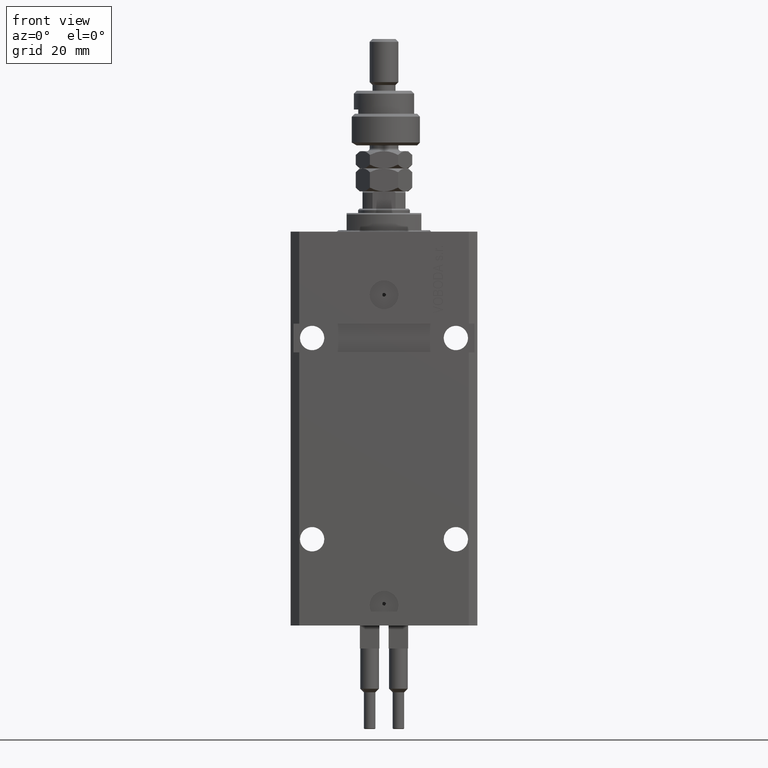
[diagram: clean part render]
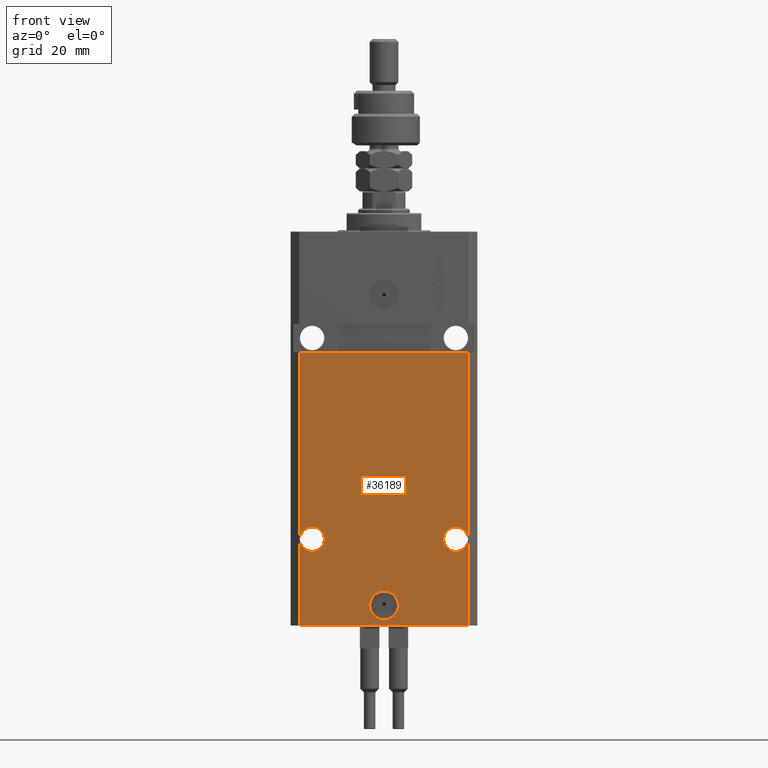
[diagram: same view with one face highlighted and labeled with its STEP entity id]
A machine part, front view. The second image highlights one B-rep face of the part: STEP entity #36189.
In plain terms, the highlighted planar face has unit normal (0, -1, 0).
Its self-contained STEP definition (entity closure, byte-faithful):
#200 = EDGE_CURVE ( 'NONE', #17312, #46493, #37804, .T. ) ;
#1455 = ORIENTED_EDGE ( 'NONE', *, *, #21288, .F. ) ;
#2128 = AXIS2_PLACEMENT_3D ( 'NONE', #20620, #36475, #15444 ) ;
#2803 = EDGE_LOOP ( 'NONE', ( #12438, #49709, #49940, #13972 ) ) ;
#3461 = FACE_BOUND ( 'NONE', #25334, .T. ) ;
#3558 = CARTESIAN_POINT ( 'NONE',  ( -29.49999999999650413, -22.49999999999949907, -41.99999999999999289 ) ) ;
#3888 = LINE ( 'NONE', #34297, #10810 ) ;
#3977 = PLANE ( 'NONE',  #33194 ) ;
#3979 = EDGE_CURVE ( 'NONE', #48999, #43509, #10589, .T. ) ;
#4627 = CARTESIAN_POINT ( 'NONE',  ( 29.49999999999650413, -22.49999999999949196, -137.0000000000000000 ) ) ;
#5873 = DIRECTION ( 'NONE',  ( 0.000000000000000000, 0.000000000000000000, 1.000000000000000000 ) ) ;
#6426 = AXIS2_PLACEMENT_3D ( 'NONE', #12921, #13447, #40470 ) ;
#7291 = EDGE_CURVE ( 'NONE', #50303, #34381, #29817, .T. ) ;
#8337 = CIRCLE ( 'NONE', #44880, 4.249999999989050536 ) ;
#8793 = CARTESIAN_POINT ( 'NONE',  ( -32.49999999999650413, -22.49999999999949907, -41.99999999999999289 ) ) ;
#9608 = CARTESIAN_POINT ( 'NONE',  ( -29.49999999999650413, -22.49999999999949907, -137.0000000000000000 ) ) ;
#10275 = EDGE_LOOP ( 'NONE', ( #19407, #40747 ) ) ;
#10589 = CIRCLE ( 'NONE', #6426, 4.249999999989050536 ) ;
#10769 = CARTESIAN_POINT ( 'NONE',  ( -20.75000000001095302, -22.49999999999949907, -107.0000000000000000 ) ) ;
#10810 = VECTOR ( 'NONE', #43621, 1000.000000000000000 ) ;
#11432 = ORIENTED_EDGE ( 'NONE', *, *, #7291, .F. ) ;
#12438 = ORIENTED_EDGE ( 'NONE', *, *, #38756, .F. ) ;
#12921 = CARTESIAN_POINT ( 'NONE',  ( 25.00000000000001066, -22.49999999999949196, -107.0000000000000000 ) ) ;
#13060 = EDGE_CURVE ( 'NONE', #13722, #24636, #3888, .T. ) ;
#13091 = CARTESIAN_POINT ( 'NONE',  ( 20.75000000001096012, -22.49999999999949196, -107.0000000000000000 ) ) ;
#13447 = DIRECTION ( 'NONE',  ( 1.176083712526788232E-16, -1.000000000000000000, 0.000000000000000000 ) ) ;
#13650 = LINE ( 'NONE', #29489, #19686 ) ;
#13722 = VERTEX_POINT ( 'NONE', #4627 ) ;
#13972 = ORIENTED_EDGE ( 'NONE', *, *, #13060, .T. ) ;
#14415 = ORIENTED_EDGE ( 'NONE', *, *, #200, .F. ) ;
#14624 = EDGE_LOOP ( 'NONE', ( #35965, #11432 ) ) ;
#15049 = CIRCLE ( 'NONE', #26665, 5.000000000000006217 ) ;
#15339 = EDGE_CURVE ( 'NONE', #34381, #50303, #15049, .T. ) ;
#15444 = DIRECTION ( 'NONE',  ( -1.000000000000000000, 0.000000000000000000, 0.000000000000000000 ) ) ;
#16027 = DIRECTION ( 'NONE',  ( 1.176083712526788232E-16, -1.000000000000000000, 0.000000000000000000 ) ) ;
#16947 = CIRCLE ( 'NONE', #39338, 4.249999999989050536 ) ;
#17071 = EDGE_CURVE ( 'NONE', #17765, #13722, #42756, .T. ) ;
#17187 = CARTESIAN_POINT ( 'NONE',  ( 5.000000000000008882, -22.49999999999949551, -130.0000000000000000 ) ) ;
#17312 = VERTEX_POINT ( 'NONE', #10769 ) ;
#17765 = VERTEX_POINT ( 'NONE', #38500 ) ;
#19294 = FACE_OUTER_BOUND ( 'NONE', #2803, .T. ) ;
#19407 = ORIENTED_EDGE ( 'NONE', *, *, #38117, .F. ) ;
#19686 = VECTOR ( 'NONE', #5873, 1000.000000000000000 ) ;
#20282 = CARTESIAN_POINT ( 'NONE',  ( 29.24999999998906119, -22.49999999999949196, -107.0000000000000000 ) ) ;
#20620 = CARTESIAN_POINT ( 'NONE',  ( -25.00000000000000355, -22.49999999999949907, -107.0000000000000000 ) ) ;
#20826 = CARTESIAN_POINT ( 'NONE',  ( -5.000000000000003553, -22.49999999999949551, -130.0000000000000000 ) ) ;
#20910 = DIRECTION ( 'NONE',  ( 1.176083712526788232E-16, -1.000000000000000000, 0.000000000000000000 ) ) ;
#21288 = EDGE_CURVE ( 'NONE', #46493, #17312, #16947, .T. ) ;
#22500 = VECTOR ( 'NONE', #24631, 1000.000000000000000 ) ;
#22679 = FACE_BOUND ( 'NONE', #10275, .T. ) ;
#23587 = DIRECTION ( 'NONE',  ( -1.000000000000000000, 0.000000000000000000, 0.000000000000000000 ) ) ;
#23694 = DIRECTION ( 'NONE',  ( 1.000000000000000000, 1.176083712526788232E-16, 0.000000000000000000 ) ) ;
#24631 = DIRECTION ( 'NONE',  ( 1.000000000000000000, 1.067522139062765303E-16, 1.067522139062765303E-16 ) ) ;
#24636 = VERTEX_POINT ( 'NONE', #28072 ) ;
#24811 = CARTESIAN_POINT ( 'NONE',  ( 2.646188353185214061E-15, -22.49999999999949551, -130.0000000000000000 ) ) ;
#25063 = VECTOR ( 'NONE', #43017, 1000.000000000000000 ) ;
#25071 = DIRECTION ( 'NONE',  ( 1.000000000000000000, 0.000000000000000000, 0.000000000000000000 ) ) ;
#25334 = EDGE_LOOP ( 'NONE', ( #14415, #1455 ) ) ;
#26665 = AXIS2_PLACEMENT_3D ( 'NONE', #43316, #16027, #31869 ) ;
#26839 = CARTESIAN_POINT ( 'NONE',  ( -29.49999999999650413, -22.49999999999949907, -137.0000000000000000 ) ) ;
#27321 = VERTEX_POINT ( 'NONE', #3558 ) ;
#27486 = EDGE_CURVE ( 'NONE', #17765, #27321, #13650, .T. ) ;
#28072 = CARTESIAN_POINT ( 'NONE',  ( 29.49999999999650058, -22.49999999999949196, -41.99999999999998579 ) ) ;
#29489 = CARTESIAN_POINT ( 'NONE',  ( -29.49999999999650413, -22.49999999999949907, -137.0000000000000000 ) ) ;
#29817 = CIRCLE ( 'NONE', #48883, 5.000000000000006217 ) ;
#31132 = CARTESIAN_POINT ( 'NONE',  ( -25.00000000000000355, -22.49999999999949907, -107.0000000000000000 ) ) ;
#31869 = DIRECTION ( 'NONE',  ( 1.000000000000000000, 0.000000000000000000, 0.000000000000000000 ) ) ;
#33194 = AXIS2_PLACEMENT_3D ( 'NONE', #26839, #43452, #23694 ) ;
#34297 = CARTESIAN_POINT ( 'NONE',  ( 29.49999999999650413, -22.49999999999949196, -137.0000000000000000 ) ) ;
#34381 = VERTEX_POINT ( 'NONE', #17187 ) ;
#35965 = ORIENTED_EDGE ( 'NONE', *, *, #15339, .F. ) ;
#36189 = ADVANCED_FACE ( 'NONE', ( #39045, #22679, #3461, #19294 ), #3977, .T. ) ;
#36263 = CARTESIAN_POINT ( 'NONE',  ( 25.00000000000001066, -22.49999999999949196, -107.0000000000000000 ) ) ;
#36475 = DIRECTION ( 'NONE',  ( 1.176083712526788232E-16, -1.000000000000000000, 0.000000000000000000 ) ) ;
#37804 = CIRCLE ( 'NONE', #2128, 4.249999999989050536 ) ;
#38117 = EDGE_CURVE ( 'NONE', #43509, #48999, #8337, .T. ) ;
#38500 = CARTESIAN_POINT ( 'NONE',  ( -29.49999999999650413, -22.49999999999949907, -137.0000000000000000 ) ) ;
#38682 = DIRECTION ( 'NONE',  ( 1.176083712526788232E-16, -1.000000000000000000, 0.000000000000000000 ) ) ;
#38756 = EDGE_CURVE ( 'NONE', #27321, #24636, #44390, .T. ) ;
#39045 = FACE_BOUND ( 'NONE', #14624, .T. ) ;
#39338 = AXIS2_PLACEMENT_3D ( 'NONE', #31132, #38682, #23587 ) ;
#40470 = DIRECTION ( 'NONE',  ( 1.000000000000000000, 0.000000000000000000, 0.000000000000000000 ) ) ;
#40747 = ORIENTED_EDGE ( 'NONE', *, *, #3979, .F. ) ;
#42756 = LINE ( 'NONE', #9608, #25063 ) ;
#43017 = DIRECTION ( 'NONE',  ( 1.000000000000000000, 1.176083712526788232E-16, 0.000000000000000000 ) ) ;
#43316 = CARTESIAN_POINT ( 'NONE',  ( 2.646188353185214061E-15, -22.49999999999949551, -130.0000000000000000 ) ) ;
#43452 = DIRECTION ( 'NONE',  ( 1.176083712526788232E-16, -1.000000000000000000, 0.000000000000000000 ) ) ;
#43509 = VERTEX_POINT ( 'NONE', #20282 ) ;
#43621 = DIRECTION ( 'NONE',  ( 0.000000000000000000, 0.000000000000000000, 1.000000000000000000 ) ) ;
#44010 = CARTESIAN_POINT ( 'NONE',  ( -29.24999999998905409, -22.49999999999949907, -107.0000000000000000 ) ) ;
#44390 = LINE ( 'NONE', #8793, #22500 ) ;
#44839 = DIRECTION ( 'NONE',  ( 1.000000000000000000, 0.000000000000000000, 0.000000000000000000 ) ) ;
#44880 = AXIS2_PLACEMENT_3D ( 'NONE', #36263, #47940, #44839 ) ;
#46493 = VERTEX_POINT ( 'NONE', #44010 ) ;
#47940 = DIRECTION ( 'NONE',  ( 1.176083712526788232E-16, -1.000000000000000000, 0.000000000000000000 ) ) ;
#48883 = AXIS2_PLACEMENT_3D ( 'NONE', #24811, #20910, #25071 ) ;
#48999 = VERTEX_POINT ( 'NONE', #13091 ) ;
#49709 = ORIENTED_EDGE ( 'NONE', *, *, #27486, .F. ) ;
#49940 = ORIENTED_EDGE ( 'NONE', *, *, #17071, .T. ) ;
#50303 = VERTEX_POINT ( 'NONE', #20826 ) ;